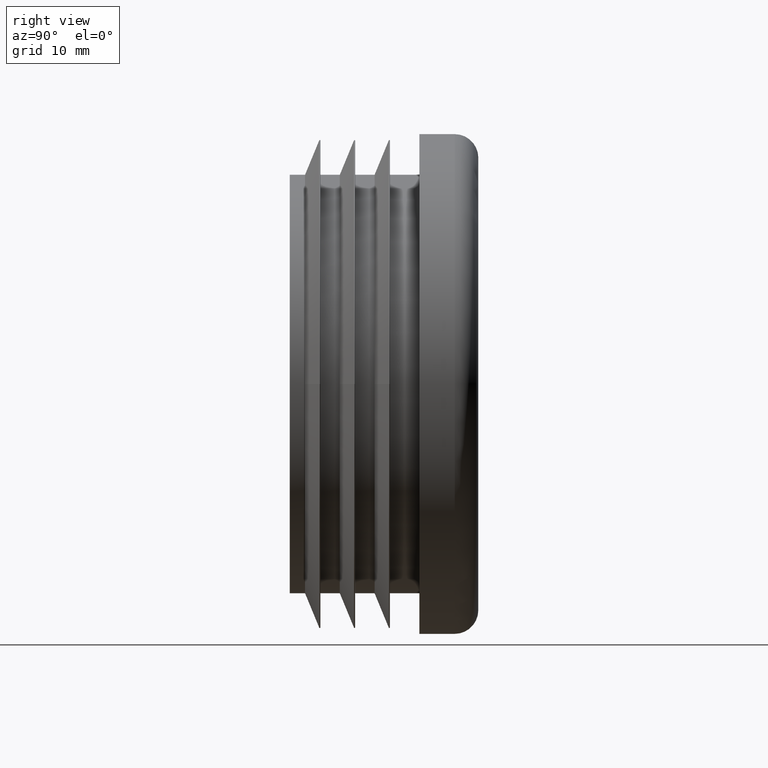
[diagram: clean part render]
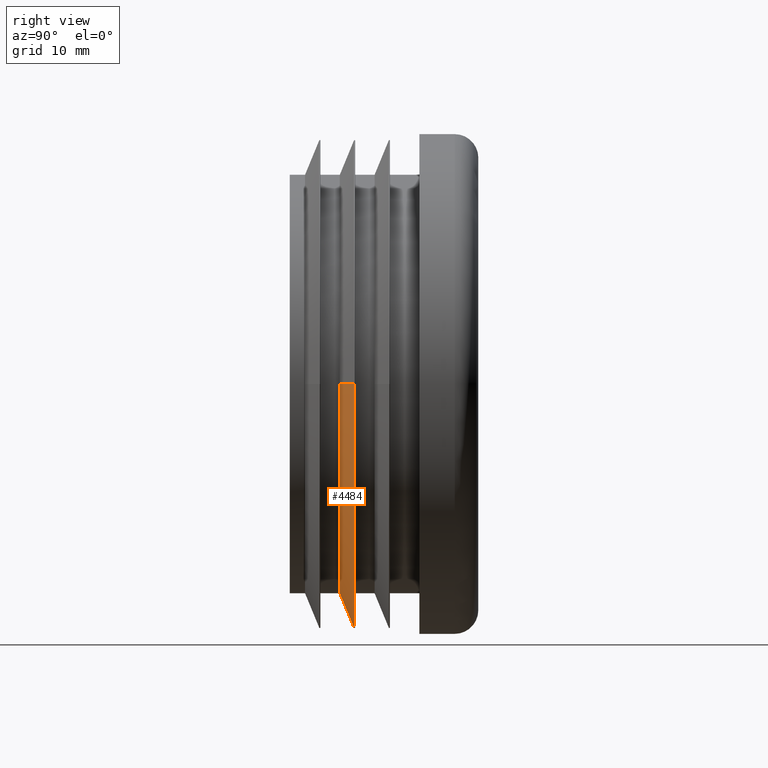
[diagram: same view with one face highlighted and labeled with its STEP entity id]
A machine part, right view. The second image highlights one B-rep face of the part: STEP entity #4484.
In plain terms, the highlighted conical surface has half-angle 67.59 deg.
Its self-contained STEP definition (entity closure, byte-faithful):
#309 = ORIENTED_EDGE ( 'NONE', *, *, #9556, .T. ) ;
#351 = CARTESIAN_POINT ( 'NONE',  ( 17.75000000000002487, 4.250000000000205169, 2.173748068486560713E-15 ) ) ;
#490 = CARTESIAN_POINT ( 'NONE',  ( -20.66906198721980559, 5.453776189650187511, 0.000000000000000000 ) ) ;
#796 = ORIENTED_EDGE ( 'NONE', *, *, #1077, .T. ) ;
#1077 = EDGE_CURVE ( 'NONE', #5874, #10772, #7495, .T. ) ;
#1288 = DIRECTION ( 'NONE',  ( -1.000000000000000000, -1.045720630588836077E-14, 0.000000000000000000 ) ) ;
#1628 = VECTOR ( 'NONE', #7821, 1000.000000000000000 ) ;
#1967 = DIRECTION ( 'NONE',  ( -1.047444401652940164E-14, 1.000000000000000000, 0.000000000000000000 ) ) ;
#2793 = EDGE_CURVE ( 'NONE', #3289, #5874, #8370, .T. ) ;
#2930 = CARTESIAN_POINT ( 'NONE',  ( -17.75000000000003908, 4.249999999999802824, 0.000000000000000000 ) ) ;
#3289 = VERTEX_POINT ( 'NONE', #2930 ) ;
#3389 = CONICAL_SURFACE ( 'NONE', #4738, 17.75000000000007105, 1.179659376938436699 ) ;
#3396 = AXIS2_PLACEMENT_3D ( 'NONE', #6189, #7049, #1288 ) ;
#3926 = LINE ( 'NONE', #351, #8300 ) ;
#4058 = EDGE_LOOP ( 'NONE', ( #6903, #309, #11680, #4195, #796 ) ) ;
#4188 = CARTESIAN_POINT ( 'NONE',  ( -1.941337383942333740E-27, 4.249999999999988454, -17.74999999999999645 ) ) ;
#4195 = ORIENTED_EDGE ( 'NONE', *, *, #2793, .T. ) ;
#4484 = ADVANCED_FACE ( 'NONE', ( #7613 ), #3389, .T. ) ;
#4738 = AXIS2_PLACEMENT_3D ( 'NONE', #4950, #1967, #6753 ) ;
#4950 = CARTESIAN_POINT ( 'NONE',  ( -4.451638707025016169E-14, 4.250000000000019540, 0.000000000000000000 ) ) ;
#5173 = CIRCLE ( 'NONE', #3396, 17.74999999999999645 ) ;
#5874 = VERTEX_POINT ( 'NONE', #490 ) ;
#6189 = CARTESIAN_POINT ( 'NONE',  ( -4.451638707024983353E-14, 4.249999999999988454, 0.000000000000000000 ) ) ;
#6753 = DIRECTION ( 'NONE',  ( -1.000000000000000000, -1.045720630588831659E-14, 0.000000000000000000 ) ) ;
#6903 = ORIENTED_EDGE ( 'NONE', *, *, #7981, .F. ) ;
#7049 = DIRECTION ( 'NONE',  ( -1.047444401652940164E-14, 1.000000000000000000, 0.000000000000000000 ) ) ;
#7432 = CARTESIAN_POINT ( 'NONE',  ( 20.66906198721969190, 5.453776189650619166, 2.531230060402689730E-15 ) ) ;
#7495 = CIRCLE ( 'NONE', #12142, 20.66906198721974874 ) ;
#7613 = FACE_OUTER_BOUND ( 'NONE', #4058, .T. ) ;
#7727 = EDGE_CURVE ( 'NONE', #11806, #3289, #5173, .T. ) ;
#7772 = CARTESIAN_POINT ( 'NONE',  ( -17.75000000000011724, 4.249999999999833911, 0.000000000000000000 ) ) ;
#7821 = DIRECTION ( 'NONE',  ( -0.9244762069923562198, 0.3812397443932442065, 0.000000000000000000 ) ) ;
#7981 = EDGE_CURVE ( 'NONE', #12299, #10772, #3926, .T. ) ;
#7999 = DIRECTION ( 'NONE',  ( 1.047444401652940164E-14, -1.000000000000000000, -0.000000000000000000 ) ) ;
#8121 = CARTESIAN_POINT ( 'NONE',  ( -5.712527337717418116E-14, 5.453776189650403339, 0.000000000000000000 ) ) ;
#8265 = CARTESIAN_POINT ( 'NONE',  ( -4.451638707024983353E-14, 4.249999999999988454, 0.000000000000000000 ) ) ;
#8300 = VECTOR ( 'NONE', #9045, 1000.000000000000114 ) ;
#8370 = LINE ( 'NONE', #7772, #1628 ) ;
#8985 = DIRECTION ( 'NONE',  ( 1.000000000000000000, 1.049106314699618723E-14, 0.000000000000000000 ) ) ;
#9045 = DIRECTION ( 'NONE',  ( 0.9244762069923481151, 0.3812397443932635244, 1.132156827781070026E-16 ) ) ;
#9114 = AXIS2_PLACEMENT_3D ( 'NONE', #8265, #11184, #10224 ) ;
#9556 = EDGE_CURVE ( 'NONE', #12299, #11806, #11546, .T. ) ;
#10224 = DIRECTION ( 'NONE',  ( -1.000000000000000000, -1.045720630588836077E-14, 0.000000000000000000 ) ) ;
#10671 = CARTESIAN_POINT ( 'NONE',  ( 17.74999999999995026, 4.250000000000174083, 2.352489064444620883E-15 ) ) ;
#10772 = VERTEX_POINT ( 'NONE', #7432 ) ;
#11184 = DIRECTION ( 'NONE',  ( -1.047444401652940164E-14, 1.000000000000000000, 0.000000000000000000 ) ) ;
#11546 = CIRCLE ( 'NONE', #9114, 17.74999999999999645 ) ;
#11680 = ORIENTED_EDGE ( 'NONE', *, *, #7727, .T. ) ;
#11806 = VERTEX_POINT ( 'NONE', #4188 ) ;
#12142 = AXIS2_PLACEMENT_3D ( 'NONE', #8121, #7999, #8985 ) ;
#12299 = VERTEX_POINT ( 'NONE', #10671 ) ;